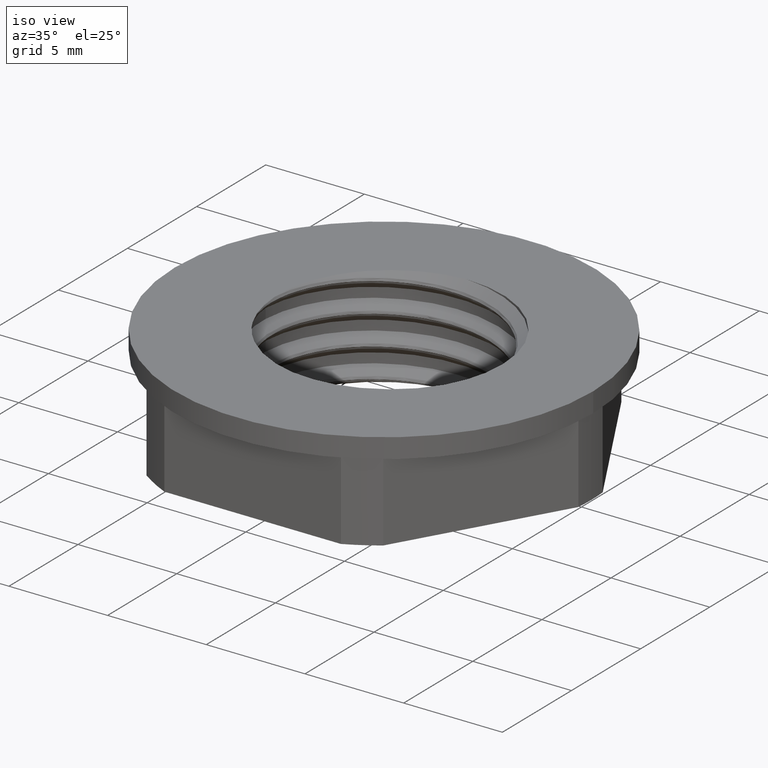
[diagram: clean part render]
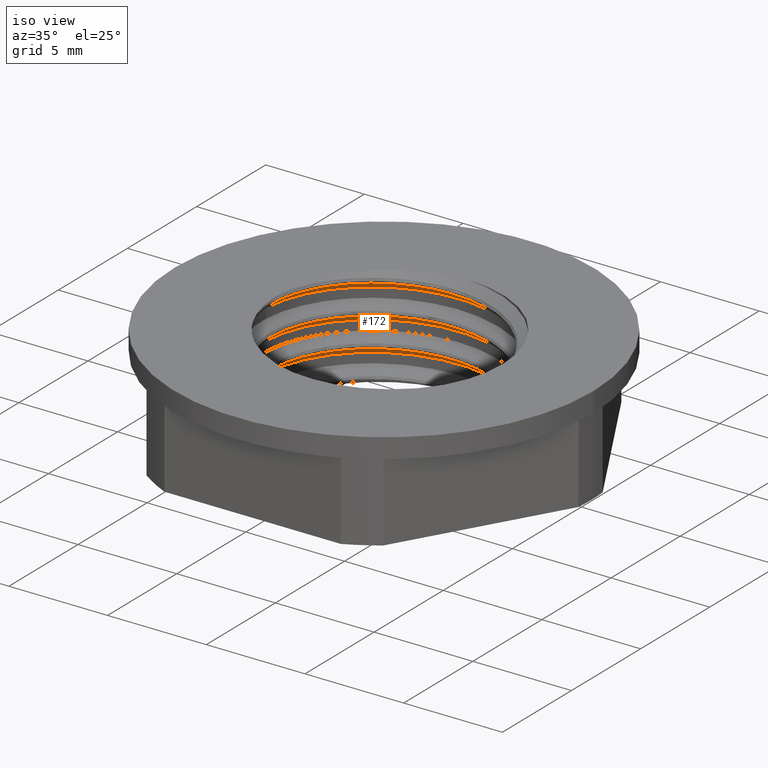
[diagram: same view with one face highlighted and labeled with its STEP entity id]
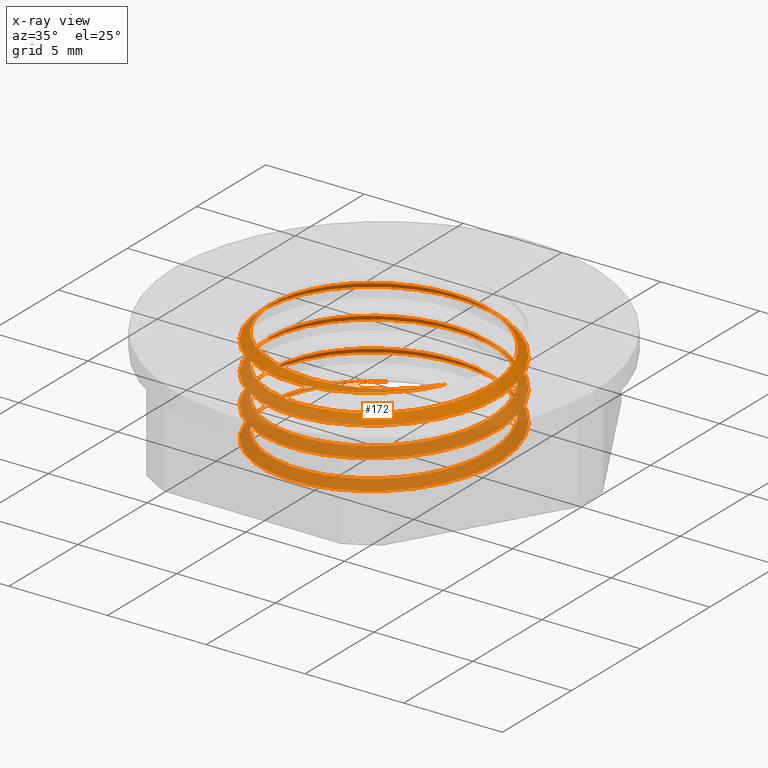
[diagram: x-ray of the same camera — body ghosted, the highlighted face saturated]
A machine part, iso view. The second image highlights one B-rep face of the part: STEP entity #172.
The next image is the same camera in x-ray: the body ghosted, the highlighted face saturated — about 62% of this face is hidden behind the body in this view.
In plain terms, the highlighted face is a freeform B-spline surface patch.
Its self-contained STEP definition (entity closure, byte-faithful):
#162 = EDGE_CURVE ( 'NONE', #832, #842, #2611, .T. ) ;
#163 = EDGE_CURVE ( 'NONE', #836, #845, #2612, .T. ) ;
#165 = EDGE_CURVE ( 'NONE', #846, #841, #2604, .T. ) ;
#172 = ADVANCED_FACE ( 'NONE', ( #1658 ), #2607, .F. ) ;
#176 = EDGE_CURVE ( 'NONE', #820, #835, #2614, .T. ) ;
#177 = EDGE_CURVE ( 'NONE', #819, #820, #1039, .T. ) ;
#197 = EDGE_CURVE ( 'NONE', #819, #899, #2615, .T. ) ;
#199 = EDGE_CURVE ( 'NONE', #835, #846, #2593, .T. ) ;
#218 = EDGE_CURVE ( 'NONE', #841, #836, #2598, .T. ) ;
#222 = EDGE_CURVE ( 'NONE', #845, #832, #2609, .T. ) ;
#234 = EDGE_CURVE ( 'NONE', #842, #899, #1045, .T. ) ;
#266 = ORIENTED_EDGE ( 'NONE', *, *, #218, .F. ) ;
#267 = ORIENTED_EDGE ( 'NONE', *, *, #234, .F. ) ;
#289 = EDGE_LOOP ( 'NONE', ( #267, #1003, #975, #291, #266, #1028, #989, #303, #984, #995 ) ) ;
#291 = ORIENTED_EDGE ( 'NONE', *, *, #163, .F. ) ;
#303 = ORIENTED_EDGE ( 'NONE', *, *, #176, .F. ) ;
#819 = VERTEX_POINT ( 'NONE', #1222 ) ;
#820 = VERTEX_POINT ( 'NONE', #1257 ) ;
#832 = VERTEX_POINT ( 'NONE', #1220 ) ;
#835 = VERTEX_POINT ( 'NONE', #1246 ) ;
#836 = VERTEX_POINT ( 'NONE', #1221 ) ;
#841 = VERTEX_POINT ( 'NONE', #1252 ) ;
#842 = VERTEX_POINT ( 'NONE', #1270 ) ;
#845 = VERTEX_POINT ( 'NONE', #1236 ) ;
#846 = VERTEX_POINT ( 'NONE', #1250 ) ;
#899 = VERTEX_POINT ( 'NONE', #1300 ) ;
#975 = ORIENTED_EDGE ( 'NONE', *, *, #222, .F. ) ;
#984 = ORIENTED_EDGE ( 'NONE', *, *, #177, .F. ) ;
#989 = ORIENTED_EDGE ( 'NONE', *, *, #199, .F. ) ;
#995 = ORIENTED_EDGE ( 'NONE', *, *, #197, .T. ) ;
#1003 = ORIENTED_EDGE ( 'NONE', *, *, #162, .F. ) ;
#1028 = ORIENTED_EDGE ( 'NONE', *, *, #165, .F. ) ;
#1039 = B_SPLINE_CURVE_WITH_KNOTS ( 'NONE', 3,
 ( #2038, #1999, #2043, #2020, #2040, #2044, #2045, #2029, #1994, #2025, #1991, #2031, #2013, #2032, #2010, #2033, #2035, #2039, #1992, #2000, #2001, #2002, #2003, #2005 ),
 .UNSPECIFIED., .F., .F.,
 ( 4, 2, 2, 2, 2, 2, 2, 2, 2, 2, 2, 4 ),
 ( 8.673617379884035500E-018, 0.001129553570658957300, 0.001694330355988432500, 0.002259107141317907200, 0.003388660711976854600, 0.003953437497306327800, 0.004518214282635801500, 0.005647767853294750500, 0.006777321423953698700, 0.007342098209283172400, 0.007906874994612645200, 0.009036428565271592600 ),
 .UNSPECIFIED. ) ;
#1045 = B_SPLINE_CURVE_WITH_KNOTS ( 'NONE', 3,
 ( #1130, #1134, #1165, #1112, #1124, #1147, #1122, #1158, #1149, #1152, #1107, #1118, #1113, #1146, #1125, #1136, #1111, #1142, #1155, #1139 ),
 .UNSPECIFIED., .F., .F.,
 ( 4, 2, 2, 2, 2, 2, 2, 2, 2, 4 ),
 ( 0.005140255465222615500, 0.006270614411305611800, 0.007400973357388608200, 0.008531332303471604600, 0.009661691249554602700, 0.01022687072259610000, 0.01079205019563759900, 0.01192240914172059500, 0.01305276808780359200, 0.01418312703388658600 ),
 .UNSPECIFIED. ) ;
#1107 = CARTESIAN_POINT ( 'NONE',  ( 1.204754885399140100, -5.638966085541290400, 4.999999999999997300 ) ) ;
#1111 = CARTESIAN_POINT ( 'NONE',  ( -1.412804882249637300, -5.462532305369979500, 5.000000000000003600 ) ) ;
#1112 = CARTESIAN_POINT ( 'NONE',  ( 4.227097836677465600, -4.174351955436847600, 4.999999999999998200 ) ) ;
#1113 = CARTESIAN_POINT ( 'NONE',  ( 0.6421405978360399400, -5.702663910916094800, 4.999999999999984900 ) ) ;
#1118 = CARTESIAN_POINT ( 'NONE',  ( 0.8297991214910988000, -5.687767322482637900, 4.999999999999996400 ) ) ;
#1122 = CARTESIAN_POINT ( 'NONE',  ( 2.991736359715123000, -5.045854039460893500, 5.000000000000000900 ) ) ;
#1124 = CARTESIAN_POINT ( 'NONE',  ( 3.942279427979866700, -4.419693311114826000, 5.000000000000000000 ) ) ;
#1125 = CARTESIAN_POINT ( 'NONE',  ( -0.2994377954685464900, -5.693119573924831500, 5.000000000000001800 ) ) ;
#1130 = CARTESIAN_POINT ( 'NONE',  ( 5.190548839197149700, -3.009684825344527400, 4.999999999999997300 ) ) ;
#1134 = CARTESIAN_POINT ( 'NONE',  ( 4.987281056735323400, -3.326515773597758400, 5.000000000000000000 ) ) ;
#1136 = CARTESIAN_POINT ( 'NONE',  ( -1.049877713880709200, -5.563720941580482000, 5.000000000000000000 ) ) ;
#1139 = CARTESIAN_POINT ( 'NONE',  ( -2.777035996044652700, -4.809401473806784300, 5.000000000000000000 ) ) ;
#1142 = CARTESIAN_POINT ( 'NONE',  ( -2.114864666069490100, -5.189524444004612200, 5.000000000000003600 ) ) ;
#1146 = CARTESIAN_POINT ( 'NONE',  ( 0.07863273807698162300, -5.719348577435147800, 4.999999999999985800 ) ) ;
#1147 = CARTESIAN_POINT ( 'NONE',  ( 3.325772853815228000, -4.855333411022990700, 5.000000000000001800 ) ) ;
#1149 = CARTESIAN_POINT ( 'NONE',  ( 1.947562195188667900, -5.475126190460958500, 5.000000000000000000 ) ) ;
#1152 = CARTESIAN_POINT ( 'NONE',  ( 1.393101044464085200, -5.604688963300170600, 5.000000000000000000 ) ) ;
#1155 = CARTESIAN_POINT ( 'NONE',  ( -2.456167257208765600, -5.016057074246332600, 5.000000000000000900 ) ) ;
#1158 = CARTESIAN_POINT ( 'NONE',  ( 2.304141565168539100, -5.354427976357244200, 5.000000000000000000 ) ) ;
#1165 = CARTESIAN_POINT ( 'NONE',  ( 4.749717436548684700, -3.628453458595330500, 4.999999999999998200 ) ) ;
#1220 = CARTESIAN_POINT ( 'NONE',  ( -6.000000000000001800, -6.509205793601941100E-015, 4.376149007339530600 ) ) ;
#1221 = CARTESIAN_POINT ( 'NONE',  ( -6.000000000000001800, -3.254602896800970600E-015, 2.876149007339531000 ) ) ;
#1222 = CARTESIAN_POINT ( 'NONE',  ( -2.790923561363135400, 4.801355760013072100, -7.015588947076672200E-018 ) ) ;
#1236 = CARTESIAN_POINT ( 'NONE',  ( 6.000000000000000900, 1.122276860965852100E-016, 3.626149007339530600 ) ) ;
#1246 = CARTESIAN_POINT ( 'NONE',  ( 6.000000000000000900, 1.122276860965852100E-016, 0.6261490073395348200 ) ) ;
#1250 = CARTESIAN_POINT ( 'NONE',  ( -6.000000000000001800, 4.040196699477066700E-015, 1.376149007339533900 ) ) ;
#1252 = CARTESIAN_POINT ( 'NONE',  ( 6.000000000000001800, -3.479058268994140500E-015, 2.126149007339532800 ) ) ;
#1257 = CARTESIAN_POINT ( 'NONE',  ( -5.192396889363846100, -3.006495392200805700, 1.841391375954116600E-017 ) ) ;
#1270 = CARTESIAN_POINT ( 'NONE',  ( 5.190548839197149700, -3.009684825344527400, 4.999999999999997300 ) ) ;
#1300 = CARTESIAN_POINT ( 'NONE',  ( -2.777035996044652700, -4.809401473806784300, 5.000000000000000000 ) ) ;
#1570 = CARTESIAN_POINT ( 'NONE',  ( -5.795591850283278400, -1.552776579205799300, 4.437916857754695200 ) ) ;
#1572 = CARTESIAN_POINT ( 'NONE',  ( -5.152410731840936000, -3.953389325572113300, 4.531666857754695200 ) ) ;
#1576 = CARTESIAN_POINT ( 'NONE',  ( -0.8478361671605156900, -6.438772968725622500, 4.719166857754696100 ) ) ;
#1577 = CARTESIAN_POINT ( 'NONE',  ( -5.795591850283278400, -1.552776579205799300, 2.937916857754697900 ) ) ;
#1578 = CARTESIAN_POINT ( 'NONE',  ( -5.152410731840936000, -3.953389325572113300, 3.031666857754697900 ) ) ;
#1579 = CARTESIAN_POINT ( 'NONE',  ( 1.552776579205799300, -5.795591850283278400, 4.812916857754696100 ) ) ;
#1583 = CARTESIAN_POINT ( 'NONE',  ( 3.947141235747298400, -5.154084743364759200, 4.906422854042741500 ) ) ;
#1586 = CARTESIAN_POINT ( 'NONE',  ( -6.000000000000001800, -3.254602896800970600E-015, 2.876149007339531000 ) ) ;
#1592 = CARTESIAN_POINT ( 'NONE',  ( -6.000000000000000000, -0.7898424761968236800, 2.908122351220749000 ) ) ;
#1594 = CARTESIAN_POINT ( 'NONE',  ( 5.190548839197149700, -3.009684825344527400, 4.999999999999997300 ) ) ;
#1596 = CARTESIAN_POINT ( 'NONE',  ( -3.000123449500725400, -5.196081147148867700, 3.125416857754697900 ) ) ;
#1612 = CARTESIAN_POINT ( 'NONE',  ( -6.000000000000001800, -6.509205793601941100E-015, 4.376149007339530600 ) ) ;
#1614 = CARTESIAN_POINT ( 'NONE',  ( -6.000000000000000000, -0.7898424761968251300, 4.408122351220746400 ) ) ;
#1618 = CARTESIAN_POINT ( 'NONE',  ( -3.000123449500725400, -5.196081147148867700, 4.625416857754695200 ) ) ;
#1622 = CARTESIAN_POINT ( 'NONE',  ( -0.8478361671605156900, -6.438772968725622500, 3.219166857754697900 ) ) ;
#1624 = CARTESIAN_POINT ( 'NONE',  ( -3.000123449500725400, -5.196081147148867700, 1.625416857754699900 ) ) ;
#1630 = CARTESIAN_POINT ( 'NONE',  ( -0.8478361671605156900, -6.438772968725622500, 1.719166857754700100 ) ) ;
#1631 = CARTESIAN_POINT ( 'NONE',  ( 6.000000000000001800, -3.479058268994140500E-015, 2.126149007339532800 ) ) ;
#1632 = CARTESIAN_POINT ( 'NONE',  ( 6.000000000000000900, 1.122276860965852100E-016, 3.626149007339530600 ) ) ;
#1633 = CARTESIAN_POINT ( 'NONE',  ( 1.552776579205799300, -5.795591850283278400, 3.312916857754697900 ) ) ;
#1634 = CARTESIAN_POINT ( 'NONE',  ( 3.953389325572111500, -5.152410731840936900, 3.406666857754697000 ) ) ;
#1635 = CARTESIAN_POINT ( 'NONE',  ( 5.196081147148865900, -3.000123449500725400, 3.500416857754697500 ) ) ;
#1639 = CARTESIAN_POINT ( 'NONE',  ( 5.999999999999999100, -1.607771546170717400, 2.061065355754119600 ) ) ;
#1643 = CARTESIAN_POINT ( 'NONE',  ( -5.795591850283278400, -1.552776579205799300, 1.437916857754700100 ) ) ;
#1644 = CARTESIAN_POINT ( 'NONE',  ( -5.152410731840936000, -3.953389325572113300, 1.531666857754700100 ) ) ;
#1653 = CARTESIAN_POINT ( 'NONE',  ( 1.552776579205799300, -5.795591850283278400, 1.812916857754699700 ) ) ;
#1654 = CARTESIAN_POINT ( 'NONE',  ( 5.999999999999999100, -1.607771546170716000, 3.561065355754117400 ) ) ;
#1657 = CARTESIAN_POINT ( 'NONE',  ( -6.000000000000001800, 4.040196699477066700E-015, 1.376149007339533900 ) ) ;
#1658 = FACE_OUTER_BOUND ( 'NONE', #289, .T. ) ;
#1661 = CARTESIAN_POINT ( 'NONE',  ( 3.953389325572111500, -5.152410731840936900, 1.906666857754699500 ) ) ;
#1663 = CARTESIAN_POINT ( 'NONE',  ( -6.000000000000001800, -0.7898424761968200200, 1.408122351220751700 ) ) ;
#1664 = CARTESIAN_POINT ( 'NONE',  ( 5.196081147148865900, -3.000123449500725400, 2.000416857754699200 ) ) ;
#1804 = CARTESIAN_POINT ( 'NONE',  ( -3.659245206378454600, 4.769055794689131200, 0.03125615559874158500 ) ) ;
#1805 = CARTESIAN_POINT ( 'NONE',  ( -0.7847545928271130200, -5.959708791736257900, 2.093756155598738700 ) ) ;
#1808 = CARTESIAN_POINT ( 'NONE',  ( 1.437245306775671000, -5.364382293212695000, 2.187506155598738300 ) ) ;
#1810 = CARTESIAN_POINT ( 'NONE',  ( 3.659245206378452000, -4.769055794689133900, 2.281256155598738700 ) ) ;
#1811 = CARTESIAN_POINT ( 'NONE',  ( 4.809476999057355200, -2.776905193758122600, 2.375006155598738300 ) ) ;
#1812 = CARTESIAN_POINT ( 'NONE',  ( 5.959708791736257900, -0.7847545928271100200, 2.468756155598738700 ) ) ;
#1816 = CARTESIAN_POINT ( 'NONE',  ( -5.364382293212695000, -1.437245306775671000, 0.3125061555987411800 ) ) ;
#1817 = CARTESIAN_POINT ( 'NONE',  ( 1.437245306775671000, -5.364382293212695000, 0.6875061555987406200 ) ) ;
#1823 = CARTESIAN_POINT ( 'NONE',  ( 5.364382293212695000, 1.437245306775670500, 1.062506155598740100 ) ) ;
#1824 = CARTESIAN_POINT ( 'NONE',  ( -3.659245206378454600, 4.769055794689131200, 1.531256155598739400 ) ) ;
#1827 = CARTESIAN_POINT ( 'NONE',  ( 4.809476999057355200, -2.776905193758122600, 0.8750061555987404000 ) ) ;
#1830 = CARTESIAN_POINT ( 'NONE',  ( -0.7847545928271130200, -5.959708791736257900, 0.5937561555987407300 ) ) ;
#1838 = CARTESIAN_POINT ( 'NONE',  ( 2.776905193758121700, 4.809476999057356000, -0.2499938444012580200 ) ) ;
#1839 = CARTESIAN_POINT ( 'NONE',  ( 3.659245206378452000, -4.769055794689133900, 0.7812561555987405100 ) ) ;
#1840 = CARTESIAN_POINT ( 'NONE',  ( 5.959708791736257900, -0.7847545928271100200, 0.9687561555987404000 ) ) ;
#1841 = CARTESIAN_POINT ( 'NONE',  ( 4.769055794689135700, 3.659245206378452000, 1.156256155598740100 ) ) ;
#1842 = CARTESIAN_POINT ( 'NONE',  ( 2.776905193758121700, 4.809476999057356000, 1.250006155598739800 ) ) ;
#1843 = CARTESIAN_POINT ( 'NONE',  ( 0.7847545928271111300, 5.959708791736257900, 1.343756155598739800 ) ) ;
#1844 = CARTESIAN_POINT ( 'NONE',  ( -4.809476999057356000, 2.776905193758122200, 1.625006155598739200 ) ) ;
#1845 = CARTESIAN_POINT ( 'NONE',  ( -1.437245306775671000, 5.364382293212695000, -0.06249384440125827600 ) ) ;
#1846 = CARTESIAN_POINT ( 'NONE',  ( -5.959708791736257900, 0.7847545928271115700, 1.718756155598739600 ) ) ;
#1848 = CARTESIAN_POINT ( 'NONE',  ( -5.364382293212695000, -1.437245306775671000, 1.812506155598739000 ) ) ;
#1849 = CARTESIAN_POINT ( 'NONE',  ( -4.769055794689132100, -3.659245206378454600, 1.906256155598738700 ) ) ;
#1850 = CARTESIAN_POINT ( 'NONE',  ( -4.809476999057356000, 2.776905193758122200, 0.1250061555987414500 ) ) ;
#1851 = CARTESIAN_POINT ( 'NONE',  ( -1.437245306775671000, 5.364382293212695000, 1.437506155598739400 ) ) ;
#1852 = CARTESIAN_POINT ( 'NONE',  ( -2.776905193758122200, -4.809476999057356000, 2.000006155598738700 ) ) ;
#1857 = CARTESIAN_POINT ( 'NONE',  ( -5.959708791736257900, 0.7847545928271115700, 0.2187561555987413100 ) ) ;
#1858 = CARTESIAN_POINT ( 'NONE',  ( -4.769055794689132100, -3.659245206378454600, 0.4062561555987410100 ) ) ;
#1859 = CARTESIAN_POINT ( 'NONE',  ( -2.776905193758122200, -4.809476999057356000, 0.5000061555987409500 ) ) ;
#1862 = CARTESIAN_POINT ( 'NONE',  ( 0.7847545928271111300, 5.959708791736257900, -0.1562438444012581300 ) ) ;
#1863 = CARTESIAN_POINT ( 'NONE',  ( 3.119555498731400300, 5.402932175054450800, -0.8250056718119722600 ) ) ;
#1864 = CARTESIAN_POINT ( 'NONE',  ( -5.364382293212695000, -1.437245306775671000, 6.312506155598733000 ) ) ;
#1865 = CARTESIAN_POINT ( 'NONE',  ( 3.659245206378452000, -4.769055794689133900, 5.281256155598733800 ) ) ;
#1866 = CARTESIAN_POINT ( 'NONE',  ( -4.809476999057356000, 2.776905193758122200, 4.625006155598735600 ) ) ;
#1867 = CARTESIAN_POINT ( 'NONE',  ( -4.809476999057356000, 2.776905193758122200, 3.125006155598737000 ) ) ;
#1868 = CARTESIAN_POINT ( 'NONE',  ( -5.959708791736257900, 0.7847545928271115700, 3.218756155598737400 ) ) ;
#1869 = CARTESIAN_POINT ( 'NONE',  ( -4.769055794689132100, -3.659245206378454600, 6.406256155598732100 ) ) ;
#1870 = CARTESIAN_POINT ( 'NONE',  ( 2.776905193758121700, 4.809476999057356000, 7.250006155598731200 ) ) ;
#1871 = CARTESIAN_POINT ( 'NONE',  ( -5.364382293212695000, -1.437245306775671000, 4.812506155598734700 ) ) ;
#1872 = CARTESIAN_POINT ( 'NONE',  ( 0.8815877152418809500, 6.695094371204562300, -0.7312556718119722600 ) ) ;
#1873 = CARTESIAN_POINT ( 'NONE',  ( -3.659245206378454600, 4.769055794689131200, 3.031256155598737000 ) ) ;
#1874 = CARTESIAN_POINT ( 'NONE',  ( 4.769055794689135700, 3.659245206378452000, 2.656256155598737400 ) ) ;
#1875 = CARTESIAN_POINT ( 'NONE',  ( 2.776905193758121700, 4.809476999057356000, 2.750006155598737400 ) ) ;
#1876 = CARTESIAN_POINT ( 'NONE',  ( 0.7847545928271111300, 5.959708791736257900, 2.843756155598737800 ) ) ;
#1877 = CARTESIAN_POINT ( 'NONE',  ( -5.959708791736257900, 0.7847545928271115700, 6.218756155598733000 ) ) ;
#1878 = CARTESIAN_POINT ( 'NONE',  ( 4.769055794689135700, 3.659245206378452000, 7.156256155598732100 ) ) ;
#1879 = CARTESIAN_POINT ( 'NONE',  ( 1.437245306775671000, -5.364382293212695000, 6.687506155598733000 ) ) ;
#1880 = CARTESIAN_POINT ( 'NONE',  ( -1.614591131831228900, 6.026308826712741200, -0.6375056718119724900 ) ) ;
#1881 = CARTESIAN_POINT ( 'NONE',  ( 1.437245306775671000, -5.364382293212695000, 3.687506155598736500 ) ) ;
#1882 = CARTESIAN_POINT ( 'NONE',  ( 2.776905193758121700, 4.809476999057356000, 4.250006155598735600 ) ) ;
#1883 = CARTESIAN_POINT ( 'NONE',  ( -2.776905193758122200, -4.809476999057356000, 5.000006155598734700 ) ) ;
#1884 = CARTESIAN_POINT ( 'NONE',  ( -4.809476999057356000, 2.776905193758122200, 6.125006155598733000 ) ) ;
#1885 = CARTESIAN_POINT ( 'NONE',  ( -2.776905193758122200, -4.809476999057356000, 6.500006155598733000 ) ) ;
#1886 = CARTESIAN_POINT ( 'NONE',  ( -5.959708791736257900, 0.7847545928271115700, 4.718756155598734700 ) ) ;
#1887 = CARTESIAN_POINT ( 'NONE',  ( 1.437245306775671000, -5.364382293212695000, 5.187506155598734700 ) ) ;
#1888 = CARTESIAN_POINT ( 'NONE',  ( 5.959708791736257900, -0.7847545928271100200, 5.468756155598734700 ) ) ;
#1889 = CARTESIAN_POINT ( 'NONE',  ( 4.769055794689135700, 3.659245206378452000, 5.656256155598733800 ) ) ;
#1890 = CARTESIAN_POINT ( 'NONE',  ( 2.776905193758121700, 4.809476999057356000, 5.750006155598733800 ) ) ;
#1891 = CARTESIAN_POINT ( 'NONE',  ( -1.437245306775671000, 5.364382293212695000, 5.937506155598733800 ) ) ;
#1892 = CARTESIAN_POINT ( 'NONE',  ( -4.110769978904339300, 5.357523282220919100, -0.5437556718119727100 ) ) ;
#1893 = CARTESIAN_POINT ( 'NONE',  ( -5.402932175054450800, 3.119555498731400700, -0.4500056718119727600 ) ) ;
#1894 = CARTESIAN_POINT ( 'NONE',  ( 4.809476999057355200, -2.776905193758122600, 5.375006155598734700 ) ) ;
#1895 = CARTESIAN_POINT ( 'NONE',  ( -4.769055794689132100, -3.659245206378454600, 4.906256155598734700 ) ) ;
#1896 = CARTESIAN_POINT ( 'NONE',  ( 5.364382293212695000, 1.437245306775670500, 5.562506155598733800 ) ) ;
#1897 = CARTESIAN_POINT ( 'NONE',  ( -1.437245306775671000, 5.364382293212695000, 2.937506155598737400 ) ) ;
#1898 = CARTESIAN_POINT ( 'NONE',  ( -2.776905193758122200, -4.809476999057356000, 3.500006155598736500 ) ) ;
#1899 = CARTESIAN_POINT ( 'NONE',  ( -6.695094371204562300, 0.8815877152418814000, -0.3562556718119728700 ) ) ;
#1900 = CARTESIAN_POINT ( 'NONE',  ( -6.026308826712741200, -1.614591131831228900, -0.2625056718119730400 ) ) ;
#1901 = CARTESIAN_POINT ( 'NONE',  ( -5.357523282220919100, -4.110769978904339300, -0.1687556718119731800 ) ) ;
#1902 = CARTESIAN_POINT ( 'NONE',  ( -3.119555498731401100, -5.402932175054450800, -0.07500567181197330400 ) ) ;
#1903 = CARTESIAN_POINT ( 'NONE',  ( 4.809476999057355200, -2.776905193758122600, 3.875006155598736100 ) ) ;
#1904 = CARTESIAN_POINT ( 'NONE',  ( -0.8815877152418832900, -6.695094371204563200, 0.01874432818802656400 ) ) ;
#1905 = CARTESIAN_POINT ( 'NONE',  ( 1.614591131831228900, -6.026308826712741200, 0.1124943281880264300 ) ) ;
#1906 = CARTESIAN_POINT ( 'NONE',  ( 5.364382293212695000, 1.437245306775670500, 4.062506155598735600 ) ) ;
#1907 = CARTESIAN_POINT ( 'NONE',  ( -1.437245306775671000, 5.364382293212695000, 4.437506155598736500 ) ) ;
#1908 = CARTESIAN_POINT ( 'NONE',  ( -0.7847545928271130200, -5.959708791736257900, 6.593756155598733000 ) ) ;
#1909 = CARTESIAN_POINT ( 'NONE',  ( 4.809476999057355200, -2.776905193758122600, 6.875006155598732100 ) ) ;
#1910 = CARTESIAN_POINT ( 'NONE',  ( 4.110769978904338400, -5.357523282220920900, 0.2062443281880262900 ) ) ;
#1911 = CARTESIAN_POINT ( 'NONE',  ( 5.402932175054449900, -3.119555498731401100, 0.2999943281880261800 ) ) ;
#1912 = CARTESIAN_POINT ( 'NONE',  ( -5.364382293212695000, -1.437245306775671000, 3.312506155598737000 ) ) ;
#1913 = CARTESIAN_POINT ( 'NONE',  ( 4.769055794689135700, 3.659245206378452000, 4.156256155598735600 ) ) ;
#1914 = CARTESIAN_POINT ( 'NONE',  ( 3.659245206378452000, -4.769055794689133900, 3.781256155598735600 ) ) ;
#1915 = CARTESIAN_POINT ( 'NONE',  ( 5.959708791736257900, -0.7847545928271100200, 3.968756155598736100 ) ) ;
#1916 = CARTESIAN_POINT ( 'NONE',  ( 0.7847545928271111300, 5.959708791736257900, 5.843756155598733000 ) ) ;
#1917 = CARTESIAN_POINT ( 'NONE',  ( 5.959708791736257900, -0.7847545928271100200, 6.968756155598731200 ) ) ;
#1918 = CARTESIAN_POINT ( 'NONE',  ( -3.659245206378454600, 4.769055794689131200, 4.531256155598735600 ) ) ;
#1919 = CARTESIAN_POINT ( 'NONE',  ( 3.659245206378452000, -4.769055794689133900, 6.781256155598731200 ) ) ;
#1920 = CARTESIAN_POINT ( 'NONE',  ( -0.7847545928271130200, -5.959708791736257900, 5.093756155598734700 ) ) ;
#1921 = CARTESIAN_POINT ( 'NONE',  ( -4.769055794689132100, -3.659245206378454600, 3.406256155598736500 ) ) ;
#1922 = CARTESIAN_POINT ( 'NONE',  ( -3.659245206378454600, 4.769055794689131200, 6.031256155598733000 ) ) ;
#1923 = CARTESIAN_POINT ( 'NONE',  ( -0.7847545928271130200, -5.959708791736257900, 3.593756155598736500 ) ) ;
#1924 = CARTESIAN_POINT ( 'NONE',  ( 5.364382293212695000, 1.437245306775670500, 2.562506155598737800 ) ) ;
#1925 = CARTESIAN_POINT ( 'NONE',  ( 0.7847545928271111300, 5.959708791736257900, 4.343756155598736500 ) ) ;
#1926 = CARTESIAN_POINT ( 'NONE',  ( 5.364382293212695000, 1.437245306775670500, 7.062506155598731200 ) ) ;
#1927 = CARTESIAN_POINT ( 'NONE',  ( 4.110769978904338400, -5.357523282220920900, 6.206244328188017100 ) ) ;
#1928 = CARTESIAN_POINT ( 'NONE',  ( -4.110769978904339300, 5.357523282220919100, 5.456244328188018900 ) ) ;
#1929 = CARTESIAN_POINT ( 'NONE',  ( -0.8815877152418832900, -6.695094371204563200, 1.518744328188025100 ) ) ;
#1930 = CARTESIAN_POINT ( 'NONE',  ( 0.8815877152418809500, 6.695094371204562300, 3.768744328188021500 ) ) ;
#1931 = CARTESIAN_POINT ( 'NONE',  ( 0.8815877152418809500, 6.695094371204562300, 2.268744328188023700 ) ) ;
#1932 = CARTESIAN_POINT ( 'NONE',  ( -3.119555498731401100, -5.402932175054450800, 1.424994328188024600 ) ) ;
#1933 = CARTESIAN_POINT ( 'NONE',  ( -1.614591131831228900, 6.026308826712741200, 2.362494328188023300 ) ) ;
#1934 = CARTESIAN_POINT ( 'NONE',  ( -3.119555498731401100, -5.402932175054450800, 4.424994328188019700 ) ) ;
#1935 = CARTESIAN_POINT ( 'NONE',  ( -4.110769978904339300, 5.357523282220919100, 3.956244328188020600 ) ) ;
#1936 = CARTESIAN_POINT ( 'NONE',  ( -5.402932175054450800, 3.119555498731400700, 5.549994328188018000 ) ) ;
#1937 = CARTESIAN_POINT ( 'NONE',  ( 3.119555498731400300, 5.402932175054450800, 2.174994328188023700 ) ) ;
#1938 = CARTESIAN_POINT ( 'NONE',  ( 5.402932175054449900, -3.119555498731401100, 1.799994328188024200 ) ) ;
#1939 = CARTESIAN_POINT ( 'NONE',  ( -5.402932175054450800, 3.119555498731400700, 1.049994328188025300 ) ) ;
#1940 = CARTESIAN_POINT ( 'NONE',  ( -5.357523282220919100, -4.110769978904339300, 1.331244328188025100 ) ) ;
#1941 = CARTESIAN_POINT ( 'NONE',  ( 6.695094371204562300, -0.8815877152418797300, 1.893744328188024200 ) ) ;
#1942 = CARTESIAN_POINT ( 'NONE',  ( 6.026308826712741200, 1.614591131831228000, 1.987494328188024000 ) ) ;
#1943 = CARTESIAN_POINT ( 'NONE',  ( -1.614591131831228900, 6.026308826712741200, 5.362494328188018900 ) ) ;
#1944 = CARTESIAN_POINT ( 'NONE',  ( -5.357523282220919100, -4.110769978904339300, 5.831244328188018000 ) ) ;
#1945 = CARTESIAN_POINT ( 'NONE',  ( -6.026308826712741200, -1.614591131831228900, 1.237494328188024900 ) ) ;
#1946 = CARTESIAN_POINT ( 'NONE',  ( -5.357523282220919100, -4.110769978904339300, 2.831244328188022400 ) ) ;
#1947 = CARTESIAN_POINT ( 'NONE',  ( 6.695094371204562300, -0.8815877152418797300, 3.393744328188022000 ) ) ;
#1948 = CARTESIAN_POINT ( 'NONE',  ( 1.614591131831228900, -6.026308826712741200, 1.612494328188024400 ) ) ;
#1949 = CARTESIAN_POINT ( 'NONE',  ( 3.119555498731400300, 5.402932175054450800, 0.6749943281880256300 ) ) ;
#1950 = CARTESIAN_POINT ( 'NONE',  ( -1.614591131831228900, 6.026308826712741200, 0.8624943281880254100 ) ) ;
#1951 = CARTESIAN_POINT ( 'NONE',  ( -1.614591131831228900, 6.026308826712741200, 3.862494328188021500 ) ) ;
#1952 = CARTESIAN_POINT ( 'NONE',  ( -6.695094371204562300, 0.8815877152418814000, 4.143744328188020600 ) ) ;
#1953 = CARTESIAN_POINT ( 'NONE',  ( -6.695094371204562300, 0.8815877152418814000, 1.143744328188025100 ) ) ;
#1954 = CARTESIAN_POINT ( 'NONE',  ( -4.110769978904339300, 5.357523282220919100, 0.9562443281880252900 ) ) ;
#1955 = CARTESIAN_POINT ( 'NONE',  ( -5.357523282220919100, -4.110769978904339300, 4.331244328188019700 ) ) ;
#1956 = CARTESIAN_POINT ( 'NONE',  ( 0.8815877152418809500, 6.695094371204562300, 0.7687443281880255200 ) ) ;
#1957 = CARTESIAN_POINT ( 'NONE',  ( 1.614591131831228900, -6.026308826712741200, 4.612494328188019700 ) ) ;
#1958 = CARTESIAN_POINT ( 'NONE',  ( -0.8815877152418832900, -6.695094371204563200, 4.518744328188019700 ) ) ;
#1959 = CARTESIAN_POINT ( 'NONE',  ( -5.402932175054450800, 3.119555498731400700, 4.049994328188020600 ) ) ;
#1960 = CARTESIAN_POINT ( 'NONE',  ( 4.110769978904338400, -5.357523282220920900, 4.706244328188019700 ) ) ;
#1961 = CARTESIAN_POINT ( 'NONE',  ( 5.357523282220921800, 4.110769978904337500, 2.081244328188023300 ) ) ;
#1962 = CARTESIAN_POINT ( 'NONE',  ( 6.695094371204562300, -0.8815877152418797300, 0.3937443281880260700 ) ) ;
#1963 = CARTESIAN_POINT ( 'NONE',  ( 6.026308826712741200, 1.614591131831228000, 0.4874943281880259000 ) ) ;
#1964 = CARTESIAN_POINT ( 'NONE',  ( -6.695094371204562300, 0.8815877152418814000, 2.643744328188023300 ) ) ;
#1965 = CARTESIAN_POINT ( 'NONE',  ( 5.402932175054449900, -3.119555498731401100, 4.799994328188019700 ) ) ;
#1966 = CARTESIAN_POINT ( 'NONE',  ( 6.695094371204562300, -0.8815877152418797300, 4.893744328188019700 ) ) ;
#1967 = CARTESIAN_POINT ( 'NONE',  ( -0.8815877152418832900, -6.695094371204563200, 3.018744328188022400 ) ) ;
#1968 = CARTESIAN_POINT ( 'NONE',  ( 5.357523282220921800, 4.110769978904337500, 5.081244328188019700 ) ) ;
#1969 = CARTESIAN_POINT ( 'NONE',  ( 0.8815877152418809500, 6.695094371204562300, 5.268744328188020600 ) ) ;
#1970 = CARTESIAN_POINT ( 'NONE',  ( 4.110769978904338400, -5.357523282220920900, 3.206244328188022000 ) ) ;
#1971 = CARTESIAN_POINT ( 'NONE',  ( 5.357523282220921800, 4.110769978904337500, 3.581244328188021100 ) ) ;
#1972 = CARTESIAN_POINT ( 'NONE',  ( -6.695094371204562300, 0.8815877152418814000, 5.643744328188018000 ) ) ;
#1973 = CARTESIAN_POINT ( 'NONE',  ( -6.026308826712741200, -1.614591131831228900, 5.737494328188018000 ) ) ;
#1974 = CARTESIAN_POINT ( 'NONE',  ( -0.8815877152418832900, -6.695094371204563200, 6.018744328188018000 ) ) ;
#1975 = CARTESIAN_POINT ( 'NONE',  ( 5.402932175054449900, -3.119555498731401100, 6.299994328188017100 ) ) ;
#1976 = CARTESIAN_POINT ( 'NONE',  ( -4.110769978904339300, 5.357523282220919100, 2.456244328188022900 ) ) ;
#1977 = CARTESIAN_POINT ( 'NONE',  ( 5.357523282220921800, 4.110769978904337500, 0.5812443281880257400 ) ) ;
#1978 = CARTESIAN_POINT ( 'NONE',  ( -3.119555498731401100, -5.402932175054450800, 2.924994328188022400 ) ) ;
#1979 = CARTESIAN_POINT ( 'NONE',  ( 1.614591131831228900, -6.026308826712741200, 3.112494328188022900 ) ) ;
#1980 = CARTESIAN_POINT ( 'NONE',  ( 5.402932175054449900, -3.119555498731401100, 3.299994328188022000 ) ) ;
#1981 = CARTESIAN_POINT ( 'NONE',  ( 6.026308826712741200, 1.614591131831228000, 4.987494328188018900 ) ) ;
#1982 = CARTESIAN_POINT ( 'NONE',  ( 3.119555498731400300, 5.402932175054450800, 3.674994328188021500 ) ) ;
#1983 = CARTESIAN_POINT ( 'NONE',  ( -3.119555498731401100, -5.402932175054450800, 5.924994328188018000 ) ) ;
#1984 = CARTESIAN_POINT ( 'NONE',  ( -6.026308826712741200, -1.614591131831228900, 4.237494328188019700 ) ) ;
#1985 = CARTESIAN_POINT ( 'NONE',  ( -5.402932175054450800, 3.119555498731400700, 2.549994328188022900 ) ) ;
#1986 = CARTESIAN_POINT ( 'NONE',  ( 3.119555498731400300, 5.402932175054450800, 5.174994328188018900 ) ) ;
#1987 = CARTESIAN_POINT ( 'NONE',  ( -6.026308826712741200, -1.614591131831228900, 2.737494328188022900 ) ) ;
#1988 = CARTESIAN_POINT ( 'NONE',  ( 4.110769978904338400, -5.357523282220920900, 1.706244328188024000 ) ) ;
#1989 = CARTESIAN_POINT ( 'NONE',  ( 6.026308826712741200, 1.614591131831228000, 3.487494328188021500 ) ) ;
#1990 = CARTESIAN_POINT ( 'NONE',  ( 1.614591131831228900, -6.026308826712741200, 6.112494328188018000 ) ) ;
#1991 = CARTESIAN_POINT ( 'NONE',  ( -5.346560508895793300, 2.106934398339967500, 4.205673986346184200E-016 ) ) ;
#1992 = CARTESIAN_POINT ( 'NONE',  ( -5.787443255777130700, -1.218428900221620400, -4.936924327626287300E-015 ) ) ;
#1994 = CARTESIAN_POINT ( 'NONE',  ( -4.997470900340506000, 2.781046763360620400, 7.712602263017893000E-016 ) ) ;
#1997 = CARTESIAN_POINT ( 'NONE',  ( 6.695094371204562300, -0.8815877152418797300, 6.393744328188018000 ) ) ;
#1998 = CARTESIAN_POINT ( 'NONE',  ( -3.000123449500725400, -5.196081147148867700, 0.1254168577547021000 ) ) ;
#1999 = CARTESIAN_POINT ( 'NONE',  ( -3.130675620479919100, 4.626868812192235200, -7.015588947076669100E-018 ) ) ;
#2000 = CARTESIAN_POINT ( 'NONE',  ( -5.714496513216407600, -1.590524508746934000, -4.936924327626295200E-015 ) ) ;
#2001 = CARTESIAN_POINT ( 'NONE',  ( -5.668534566831625400, -1.776519184835600100, 1.957679437465843100E-015 ) ) ;
#2002 = CARTESIAN_POINT ( 'NONE',  ( -5.506511854050235600, -2.321480793248990700, 1.957679437465833200E-015 ) ) ;
#2003 = CARTESIAN_POINT ( 'NONE',  ( -5.365691801654824300, -2.670874910836556800, 5.787230038713156300E-017 ) ) ;
#2005 = CARTESIAN_POINT ( 'NONE',  ( -5.192396889363846100, -3.006495392200805700, 1.841391375954116600E-017 ) ) ;
#2008 = CARTESIAN_POINT ( 'NONE',  ( 5.357523282220921800, 4.110769978904337500, 6.581244328188016200 ) ) ;
#2010 = CARTESIAN_POINT ( 'NONE',  ( -5.793262567223310500, 0.6673225896231561600, -1.582343838375836800E-017 ) ) ;
#2013 = CARTESIAN_POINT ( 'NONE',  ( -5.555097320785402600, 1.578115002931770800, 2.211866207387837500E-015 ) ) ;
#2015 = CARTESIAN_POINT ( 'NONE',  ( 6.000000000000000900, 1.122276860965852100E-016, 0.6261490073395348200 ) ) ;
#2017 = CARTESIAN_POINT ( 'NONE',  ( 3.119555498731400300, 5.402932175054450800, 6.674994328188017100 ) ) ;
#2019 = CARTESIAN_POINT ( 'NONE',  ( -0.8478361671605156900, -6.438772968725622500, 0.2191668577547019900 ) ) ;
#2020 = CARTESIAN_POINT ( 'NONE',  ( -3.887117368485665500, 4.066636840943964200, -7.386220878238264900E-016 ) ) ;
#2025 = CARTESIAN_POINT ( 'NONE',  ( -5.264792864713923500, 2.280072387332351600, 7.712602263017892000E-016 ) ) ;
#2026 = CARTESIAN_POINT ( 'NONE',  ( 1.552776579205799300, -5.795591850283278400, 0.3129168577547018500 ) ) ;
#2028 = CARTESIAN_POINT ( 'NONE',  ( 6.026308826712741200, 1.614591131831228000, 6.487494328188016200 ) ) ;
#2029 = CARTESIAN_POINT ( 'NONE',  ( -4.788861562478578200, 3.094602958289661000, -2.176902321906988300E-016 ) ) ;
#2030 = CARTESIAN_POINT ( 'NONE',  ( 3.953389325572111500, -5.152410731840936900, 0.4066668577547016800 ) ) ;
#2031 = CARTESIAN_POINT ( 'NONE',  ( -5.491614511269730800, 1.756010015769154700, 4.205673986346180200E-016 ) ) ;
#2032 = CARTESIAN_POINT ( 'NONE',  ( -5.719044031589880300, 1.037301195765569600, 2.211866207387835100E-015 ) ) ;
#2033 = CARTESIAN_POINT ( 'NONE',  ( -5.868762758819164200, -0.09225411097480232200, -1.582343838375952700E-017 ) ) ;
#2034 = CARTESIAN_POINT ( 'NONE',  ( -4.388861565581882100, -4.394248829815512500, 0.06492577022616068100 ) ) ;
#2035 = CARTESIAN_POINT ( 'NONE',  ( -5.868805452612137200, -0.4696667311686331100, -1.819669500234974000E-015 ) ) ;
#2036 = CARTESIAN_POINT ( 'NONE',  ( 5.196081147148865900, -3.000123449500725400, 0.5004168577547015700 ) ) ;
#2037 = CARTESIAN_POINT ( 'NONE',  ( 5.999999999999999100, -1.607771546170716000, 0.5610653557541218600 ) ) ;
#2038 = CARTESIAN_POINT ( 'NONE',  ( -2.790923561363135400, 4.801355760013072100, -7.015588947076672200E-018 ) ) ;
#2039 = CARTESIAN_POINT ( 'NONE',  ( -5.814613041302980200, -1.031722094022645500, -1.819669500234974800E-015 ) ) ;
#2040 = CARTESIAN_POINT ( 'NONE',  ( -4.028172903690832900, 3.940936043299552200, -1.205816382645453300E-016 ) ) ;
#2041 = CARTESIAN_POINT ( 'NONE',  ( -5.192396889363846100, -3.006495392200805700, 1.841391375954116600E-017 ) ) ;
#2043 = CARTESIAN_POINT ( 'NONE',  ( -3.446836409054984300, 4.420902281911713400, -7.386220878238265900E-016 ) ) ;
#2044 = CARTESIAN_POINT ( 'NONE',  ( -4.298574927547301500, 3.673910198529732000, -1.205816382645451100E-016 ) ) ;
#2045 = CARTESIAN_POINT ( 'NONE',  ( -4.427752164970006500, 3.532547589593946200, -2.176902321906986800E-016 ) ) ;
#2151 = CARTESIAN_POINT ( 'NONE',  ( 1.437245306775671000, -5.364382293212695000, 0.6875061555987402900 ) ) ;
#2152 = CARTESIAN_POINT ( 'NONE',  ( 5.959708791736257900, -0.7847545928271093500, 0.9687561555987399500 ) ) ;
#2154 = CARTESIAN_POINT ( 'NONE',  ( 4.769055794689133900, 3.659245206378452000, 1.156256155598739600 ) ) ;
#2155 = CARTESIAN_POINT ( 'NONE',  ( -5.364382293212695000, -1.437245306775671400, 0.3125061555987407900 ) ) ;
#2156 = CARTESIAN_POINT ( 'NONE',  ( 4.809476999057355200, -2.776905193758122200, 0.8750061555987400700 ) ) ;
#2157 = CARTESIAN_POINT ( 'NONE',  ( 5.364382293212695000, 1.437245306775670500, 1.062506155598739800 ) ) ;
#2158 = CARTESIAN_POINT ( 'NONE',  ( -4.769055794689132100, -3.659245206378454600, 0.4062561555987406800 ) ) ;
#2164 = CARTESIAN_POINT ( 'NONE',  ( -2.776905193758121700, -4.809476999057356000, 0.5000061555987406200 ) ) ;
#2188 = CARTESIAN_POINT ( 'NONE',  ( -2.790923561363135400, 4.801355760013072100, -7.015588947076672200E-018 ) ) ;
#2189 = CARTESIAN_POINT ( 'NONE',  ( -5.959708791736257900, 0.7847545928271111300, 0.2187561555987409500 ) ) ;
#2192 = CARTESIAN_POINT ( 'NONE',  ( -0.7847545928271124600, -5.959708791736257900, 0.5937561555987405100 ) ) ;
#2194 = CARTESIAN_POINT ( 'NONE',  ( 3.659245206378452400, -4.769055794689133000, 0.7812561555987404000 ) ) ;
#2196 = CARTESIAN_POINT ( 'NONE',  ( -4.069817655151813300, 4.057962469191133800, 0.06471999072962034100 ) ) ;
#2197 = CARTESIAN_POINT ( 'NONE',  ( -4.809476999057356000, 2.776905193758121700, 0.1250061555987410600 ) ) ;
#2199 = CARTESIAN_POINT ( 'NONE',  ( -2.776905193758121700, -4.809476999057356000, 3.500006155598736100 ) ) ;
#2200 = CARTESIAN_POINT ( 'NONE',  ( 5.959708791736257900, -0.7847545928271093500, 2.468756155598737800 ) ) ;
#2201 = CARTESIAN_POINT ( 'NONE',  ( -1.552776579205799300, 5.795591850283278400, 1.062916857754700800 ) ) ;
#2202 = CARTESIAN_POINT ( 'NONE',  ( -3.953389325572113300, 5.152410731840936000, 1.156666857754700600 ) ) ;
#2203 = CARTESIAN_POINT ( 'NONE',  ( -5.196081147148867700, 3.000123449500725400, 1.250416857754700400 ) ) ;
#2204 = CARTESIAN_POINT ( 'NONE',  ( -6.000000000000000900, 1.607771546170718900, 1.311065355754121200 ) ) ;
#2205 = CARTESIAN_POINT ( 'NONE',  ( -6.000000000000001800, 4.040196699477066700E-015, 1.376149007339533900 ) ) ;
#2207 = CARTESIAN_POINT ( 'NONE',  ( 5.364382293212695000, 1.437245306775670500, 2.562506155598737400 ) ) ;
#2208 = CARTESIAN_POINT ( 'NONE',  ( -3.659245206378454600, 4.769055794689132100, 3.031256155598736500 ) ) ;
#2209 = CARTESIAN_POINT ( 'NONE',  ( 2.776905193758121300, 4.809476999057356000, 4.250006155598734700 ) ) ;
#2210 = CARTESIAN_POINT ( 'NONE',  ( -5.959708791736257900, 0.7847545928271111300, 3.218756155598736500 ) ) ;
#2211 = CARTESIAN_POINT ( 'NONE',  ( -4.769055794689132100, -3.659245206378454600, 1.906256155598738300 ) ) ;
#2212 = CARTESIAN_POINT ( 'NONE',  ( 3.659245206378452400, -4.769055794689133000, 3.781256155598735200 ) ) ;
#2213 = CARTESIAN_POINT ( 'NONE',  ( 0.7847545928271106900, 5.959708791736257900, 4.343756155598734700 ) ) ;
#2214 = CARTESIAN_POINT ( 'NONE',  ( 4.769055794689133900, 3.659245206378452000, 4.156256155598734700 ) ) ;
#2215 = CARTESIAN_POINT ( 'NONE',  ( -1.437245306775671400, 5.364382293212695000, 2.937506155598737000 ) ) ;
#2216 = CARTESIAN_POINT ( 'NONE',  ( -1.437245306775671400, 5.364382293212695000, 4.437506155598735600 ) ) ;
#2217 = CARTESIAN_POINT ( 'NONE',  ( 3.659245206378452400, -4.769055794689133000, 2.281256155598737400 ) ) ;
#2218 = CARTESIAN_POINT ( 'NONE',  ( 4.809476999057355200, -2.776905193758122200, 2.375006155598737800 ) ) ;
#2219 = CARTESIAN_POINT ( 'NONE',  ( -5.364382293212695000, -1.437245306775671400, 3.312506155598736500 ) ) ;
#2220 = CARTESIAN_POINT ( 'NONE',  ( 6.000000000000000900, 1.122276860965852100E-016, 0.6261490073395348200 ) ) ;
#2221 = CARTESIAN_POINT ( 'NONE',  ( 5.795591850283278400, 1.552776579205798600, 0.6879168577547012400 ) ) ;
#2222 = CARTESIAN_POINT ( 'NONE',  ( 1.437245306775671000, -5.364382293212695000, 3.687506155598736100 ) ) ;
#2224 = CARTESIAN_POINT ( 'NONE',  ( 0.8478361671605135800, 6.438772968725619900, 0.9691668577547010200 ) ) ;
#2225 = CARTESIAN_POINT ( 'NONE',  ( -1.437245306775671400, 5.364382293212695000, 1.437506155598739200 ) ) ;
#2227 = CARTESIAN_POINT ( 'NONE',  ( -4.809476999057356000, 2.776905193758121700, 3.125006155598736500 ) ) ;
#2228 = CARTESIAN_POINT ( 'NONE',  ( 4.769055794689133900, 3.659245206378452000, 2.656256155598737000 ) ) ;
#2229 = CARTESIAN_POINT ( 'NONE',  ( -3.659245206378454600, 4.769055794689132100, 4.531256155598734700 ) ) ;
#2230 = CARTESIAN_POINT ( 'NONE',  ( -2.777035996044652700, -4.809401473806784300, 5.000000000000000000 ) ) ;
#2231 = CARTESIAN_POINT ( 'NONE',  ( -2.776905193758121700, -4.809476999057356000, 2.000006155598738300 ) ) ;
#2232 = CARTESIAN_POINT ( 'NONE',  ( 6.000000000000000000, 0.7898424761968216900, 0.6581223512207524700 ) ) ;
#2233 = CARTESIAN_POINT ( 'NONE',  ( 5.364382293212695000, 1.437245306775670500, 4.062506155598734700 ) ) ;
#2234 = CARTESIAN_POINT ( 'NONE',  ( -0.7847545928271124600, -5.959708791736257900, 2.093756155598738300 ) ) ;
#2235 = CARTESIAN_POINT ( 'NONE',  ( 5.152410731840936900, 3.953389325572110600, 0.7816668577547012400 ) ) ;
#2237 = CARTESIAN_POINT ( 'NONE',  ( -4.769078692220316100, -3.659159743507039300, 4.906252549773101100 ) ) ;
#2238 = CARTESIAN_POINT ( 'NONE',  ( -4.809476999057356000, 2.776905193758121700, 1.625006155598739000 ) ) ;
#2239 = CARTESIAN_POINT ( 'NONE',  ( 2.776905193758121300, 4.809476999057356000, 2.750006155598737000 ) ) ;
#2240 = CARTESIAN_POINT ( 'NONE',  ( 5.959708791736257900, -0.7847545928271093500, 3.968756155598735600 ) ) ;
#2241 = CARTESIAN_POINT ( 'NONE',  ( 1.437245306775671000, -5.364382293212695000, 2.187506155598737800 ) ) ;
#2242 = CARTESIAN_POINT ( 'NONE',  ( 0.7847545928271106900, 5.959708791736257900, 1.343756155598739600 ) ) ;
#2243 = CARTESIAN_POINT ( 'NONE',  ( -5.364382293212695000, -1.437245306775671400, 1.812506155598738700 ) ) ;
#2244 = CARTESIAN_POINT ( 'NONE',  ( 0.7847545928271106900, 5.959708791736257900, 2.843756155598737400 ) ) ;
#2245 = CARTESIAN_POINT ( 'NONE',  ( 4.809476999057355200, -2.776905193758122200, 3.875006155598735600 ) ) ;
#2246 = CARTESIAN_POINT ( 'NONE',  ( -4.809476999057356000, 2.776905193758121700, 4.625006155598734700 ) ) ;
#2247 = CARTESIAN_POINT ( 'NONE',  ( -5.959708791736257900, 0.7847545928271111300, 4.718756155598734700 ) ) ;
#2248 = CARTESIAN_POINT ( 'NONE',  ( -5.364382293212695000, -1.437245306775671400, 4.812506155598733800 ) ) ;
#2249 = CARTESIAN_POINT ( 'NONE',  ( -0.7847545928271124600, -5.959708791736257900, 3.593756155598736100 ) ) ;
#2251 = CARTESIAN_POINT ( 'NONE',  ( 3.000123449500724500, 5.196081147148867700, 0.8754168577547010200 ) ) ;
#2253 = CARTESIAN_POINT ( 'NONE',  ( -3.659245206378454600, 4.769055794689132100, 1.531256155598739200 ) ) ;
#2255 = CARTESIAN_POINT ( 'NONE',  ( -5.959708791736257900, 0.7847545928271111300, 1.718756155598739400 ) ) ;
#2256 = CARTESIAN_POINT ( 'NONE',  ( -4.769055794689132100, -3.659245206378454600, 3.406256155598736100 ) ) ;
#2257 = CARTESIAN_POINT ( 'NONE',  ( 2.776905193758121300, 4.809476999057356000, 1.250006155598739600 ) ) ;
#2311 = CARTESIAN_POINT ( 'NONE',  ( -1.552776579205799300, 5.795591850283278400, 2.562916857754698800 ) ) ;
#2314 = CARTESIAN_POINT ( 'NONE',  ( -3.953389325572113300, 5.152410731840936000, 2.656666857754698400 ) ) ;
#2315 = CARTESIAN_POINT ( 'NONE',  ( -5.196081147148867700, 3.000123449500725400, 2.750416857754698400 ) ) ;
#2319 = CARTESIAN_POINT ( 'NONE',  ( -6.000000000000001800, -3.254602896800970600E-015, 2.876149007339531000 ) ) ;
#2321 = CARTESIAN_POINT ( 'NONE',  ( 5.152410731840936900, 3.953389325572110600, 2.281666857754698800 ) ) ;
#2323 = CARTESIAN_POINT ( 'NONE',  ( -6.000000000000002700, 1.607771546170715400, 2.811065355754118800 ) ) ;
#2351 = CARTESIAN_POINT ( 'NONE',  ( 6.000000000000001800, 0.7898424761968201300, 2.158122351220750400 ) ) ;
#2355 = CARTESIAN_POINT ( 'NONE',  ( 3.000123449500724500, 5.196081147148867700, 2.375416857754698800 ) ) ;
#2356 = CARTESIAN_POINT ( 'NONE',  ( 0.8478361671605135800, 6.438772968725619900, 2.469166857754698800 ) ) ;
#2357 = CARTESIAN_POINT ( 'NONE',  ( 6.000000000000001800, -3.479058268994140500E-015, 2.126149007339532800 ) ) ;
#2359 = CARTESIAN_POINT ( 'NONE',  ( 5.795591850283278400, 1.552776579205798600, 2.187916857754699200 ) ) ;
#2372 = CARTESIAN_POINT ( 'NONE',  ( -6.000000000000003600, 1.607771546170713600, 4.311065355754117000 ) ) ;
#2381 = CARTESIAN_POINT ( 'NONE',  ( -5.196081147148867700, 3.000123449500725400, 4.250416857754696100 ) ) ;
#2382 = CARTESIAN_POINT ( 'NONE',  ( 0.8478361671605135800, 6.438772968725619900, 3.969166857754697000 ) ) ;
#2385 = CARTESIAN_POINT ( 'NONE',  ( 6.000000000000000900, 1.122276860965852100E-016, 3.626149007339530600 ) ) ;
#2388 = CARTESIAN_POINT ( 'NONE',  ( -3.953389325572113300, 5.152410731840936000, 4.156666857754696100 ) ) ;
#2390 = CARTESIAN_POINT ( 'NONE',  ( -6.000000000000001800, -6.509205793601941100E-015, 4.376149007339530600 ) ) ;
#2391 = CARTESIAN_POINT ( 'NONE',  ( 6.000000000000000000, 0.7898424761968216900, 3.658122351220747700 ) ) ;
#2392 = CARTESIAN_POINT ( 'NONE',  ( 5.795591850283278400, 1.552776579205798600, 3.687916857754697000 ) ) ;
#2394 = CARTESIAN_POINT ( 'NONE',  ( -1.552776579205799300, 5.795591850283278400, 4.062916857754697000 ) ) ;
#2398 = CARTESIAN_POINT ( 'NONE',  ( 5.152410731840936900, 3.953389325572110600, 3.781666857754697500 ) ) ;
#2399 = CARTESIAN_POINT ( 'NONE',  ( 3.000123449500724500, 5.196081147148867700, 3.875416857754696600 ) ) ;
#2593 =( BOUNDED_CURVE ( )  B_SPLINE_CURVE ( 2, ( #2220, #2232, #2221, #2235, #2251, #2224, #2201, #2202, #2203, #2204, #2205 ),
 .UNSPECIFIED., .F., .T. ) 
 B_SPLINE_CURVE_WITH_KNOTS ( ( 3, 2, 2, 2, 2, 3 ),
 ( 0.1666196151937993400, 0.1749999999999999900, 0.2000000000000000100, 0.2250000000000000100, 0.2500000000000000000, 0.2666196151937993400 ),
 .UNSPECIFIED. ) 
 CURVE ( )  GEOMETRIC_REPRESENTATION_ITEM ( )  RATIONAL_B_SPLINE_CURVE ( ( 0.9660737115727577900, 0.9744832476326679100, 1.000000000000000000, 0.9238795325112867400, 1.000000000000000000, 0.9238795325112867400, 1.000000000000000000, 0.9238795325112867400, 1.000000000000000000, 0.9493962848786189300, 0.9660737115727575700 ) ) 
 REPRESENTATION_ITEM ( '' )  );
#2598 =( BOUNDED_CURVE ( )  B_SPLINE_CURVE ( 2, ( #2357, #2351, #2359, #2321, #2355, #2356, #2311, #2314, #2315, #2323, #2319 ),
 .UNSPECIFIED., .F., .T. ) 
 B_SPLINE_CURVE_WITH_KNOTS ( ( 3, 2, 2, 2, 2, 3 ),
 ( 0.3666196151937993200, 0.3750000000000000000, 0.4000000000000000200, 0.4249999999999999900, 0.4500000000000000100, 0.4666196151937993500 ),
 .UNSPECIFIED. ) 
 CURVE ( )  GEOMETRIC_REPRESENTATION_ITEM ( )  RATIONAL_B_SPLINE_CURVE ( ( 0.9660737115727575700, 0.9744832476326678000, 1.000000000000000000, 0.9238795325112867400, 1.000000000000000000, 0.9238795325112867400, 1.000000000000000000, 0.9238795325112867400, 1.000000000000000000, 0.9493962848786188200, 0.9660737115727577900 ) ) 
 REPRESENTATION_ITEM ( '' )  );
#2604 =( BOUNDED_CURVE ( )  B_SPLINE_CURVE ( 2, ( #1657, #1663, #1643, #1644, #1624, #1630, #1653, #1661, #1664, #1639, #1631 ),
 .UNSPECIFIED., .F., .T. ) 
 B_SPLINE_CURVE_WITH_KNOTS ( ( 3, 2, 2, 2, 2, 3 ),
 ( 0.2666196151937993400, 0.2750000000000000200, 0.2999999999999999900, 0.3250000000000000100, 0.3499999999999999800, 0.3666196151937993200 ),
 .UNSPECIFIED. ) 
 CURVE ( )  GEOMETRIC_REPRESENTATION_ITEM ( )  RATIONAL_B_SPLINE_CURVE ( ( 0.9660737115727575700, 0.9744832476326678000, 1.000000000000000000, 0.9238795325112867400, 1.000000000000000000, 0.9238795325112867400, 1.000000000000000000, 0.9238795325112867400, 1.000000000000000000, 0.9493962848786189300, 0.9660737115727575700 ) ) 
 REPRESENTATION_ITEM ( '' )  );
#2607 =( BOUNDED_SURFACE ( )  B_SPLINE_SURFACE ( 1, 2, ( 
 ( #1838, #1862, #1845, #1804, #1850, #1857, #1816, #1858, #1859, #1830, #1817, #1839, #1827, #1840, #1823, #1841, #1842, #1843, #1851, #1824, #1844, #1846, #1848, #1849, #1852, #1805, #1808, #1810, #1811, #1812, #1924, #1874, #1875, #1876, #1897, #1873, #1867, #1868, #1912, #1921, #1898, #1923, #1881, #1914, #1903, #1915, #1906, #1913, #1882, #1925, #1907, #1918, #1866, #1886, #1871, #1895, #1883, #1920, #1887, #1865, #1894, #1888, #1896, #1889, #1890, #1916, #1891, #1922, #1884, #1877, #1864, #1869, #1885, #1908, #1879, #1919, #1909, #1917, #1926, #1878, #1870 ),
 ( #1863, #1872, #1880, #1892, #1893, #1899, #1900, #1901, #1902, #1904, #1905, #1910, #1911, #1962, #1963, #1977, #1949, #1956, #1950, #1954, #1939, #1953, #1945, #1940, #1932, #1929, #1948, #1988, #1938, #1941, #1942, #1961, #1937, #1931, #1933, #1976, #1985, #1964, #1987, #1946, #1978, #1967, #1979, #1970, #1980, #1947, #1989, #1971, #1982, #1930, #1951, #1935, #1959, #1952, #1984, #1955, #1934, #1958, #1957, #1960, #1965, #1966, #1981, #1968, #1986, #1969, #1943, #1928, #1936, #1972, #1973, #1944, #1983, #1974, #1990, #1927, #1975, #1997, #2028, #2008, #2017 ) ),
 .UNSPECIFIED., .F., .F., .T. ) 
 B_SPLINE_SURFACE_WITH_KNOTS ( ( 2, 2 ),
 ( 3, 2, 2, 2, 2, 2, 2, 2, 2, 2, 2, 2, 2, 2, 2, 2, 2, 2, 2, 2, 2, 2, 2, 2, 2, 2, 2, 2, 2, 2, 2, 2, 2, 2, 2, 2, 2, 2, 2, 2, 3 ),
 ( 0.0000000000000000000, 1.000000000000000000 ),
 ( 0.0000000000000000000, 0.02500000000000000100, 0.05000000000000000300, 0.07499999999999999700, 0.1000000000000000100, 0.1250000000000000000, 0.1499999999999999900, 0.1749999999999999900, 0.2000000000000000100, 0.2250000000000000100, 0.2500000000000000000, 0.2750000000000000200, 0.2999999999999999900, 0.3250000000000000100, 0.3499999999999999800, 0.3750000000000000000, 0.4000000000000000200, 0.4249999999999999900, 0.4500000000000000100, 0.4749999999999999800, 0.5000000000000000000, 0.5250000000000000200, 0.5500000000000000400, 0.5749999999999999600, 0.5999999999999999800, 0.6250000000000000000, 0.6500000000000000200, 0.6750000000000000400, 0.6999999999999999600, 0.7249999999999999800, 0.7500000000000000000, 0.7750000000000000200, 0.8000000000000000400, 0.8249999999999999600, 0.8499999999999999800, 0.8750000000000000000, 0.9000000000000000200, 0.9250000000000000400, 0.9499999999999999600, 0.9749999999999999800, 1.000000000000000000 ),
 .UNSPECIFIED. ) 
 GEOMETRIC_REPRESENTATION_ITEM ( )  RATIONAL_B_SPLINE_SURFACE ( (
 ( 1.000000000000000000, 0.9238795325112867400, 1.000000000000000000, 0.9238795325112867400, 1.000000000000000000, 0.9238795325112867400, 1.000000000000000000, 0.9238795325112867400, 1.000000000000000000, 0.9238795325112867400, 1.000000000000000000, 0.9238795325112867400, 1.000000000000000000, 0.9238795325112867400, 1.000000000000000000, 0.9238795325112867400, 1.000000000000000000, 0.9238795325112867400, 1.000000000000000000, 0.9238795325112867400, 1.000000000000000000, 0.9238795325112867400, 1.000000000000000000, 0.9238795325112867400, 1.000000000000000000, 0.9238795325112867400, 1.000000000000000000, 0.9238795325112867400, 1.000000000000000000, 0.9238795325112867400, 1.000000000000000000, 0.9238795325112867400, 1.000000000000000000, 0.9238795325112867400, 1.000000000000000000, 0.9238795325112867400, 1.000000000000000000, 0.9238795325112867400, 1.000000000000000000, 0.9238795325112867400, 1.000000000000000000, 0.9238795325112867400, 1.000000000000000000, 0.9238795325112867400, 1.000000000000000000, 0.9238795325112867400, 1.000000000000000000, 0.9238795325112867400, 1.000000000000000000, 0.9238795325112867400, 1.000000000000000000, 0.9238795325112867400, 1.000000000000000000, 0.9238795325112867400, 1.000000000000000000, 0.9238795325112867400, 1.000000000000000000, 0.9238795325112867400, 1.000000000000000000, 0.9238795325112867400, 1.000000000000000000, 0.9238795325112867400, 1.000000000000000000, 0.9238795325112867400, 1.000000000000000000, 0.9238795325112867400, 1.000000000000000000, 0.9238795325112867400, 1.000000000000000000, 0.9238795325112867400, 1.000000000000000000, 0.9238795325112867400, 1.000000000000000000, 0.9238795325112867400, 1.000000000000000000, 0.9238795325112867400, 1.000000000000000000, 0.9238795325112867400, 1.000000000000000000, 0.9238795325112867400, 1.000000000000000000),
 ( 1.000000000000000000, 0.9238795325112867400, 1.000000000000000000, 0.9238795325112867400, 1.000000000000000000, 0.9238795325112867400, 1.000000000000000000, 0.9238795325112867400, 1.000000000000000000, 0.9238795325112867400, 1.000000000000000000, 0.9238795325112867400, 1.000000000000000000, 0.9238795325112867400, 1.000000000000000000, 0.9238795325112867400, 1.000000000000000000, 0.9238795325112867400, 1.000000000000000000, 0.9238795325112867400, 1.000000000000000000, 0.9238795325112867400, 1.000000000000000000, 0.9238795325112867400, 1.000000000000000000, 0.9238795325112867400, 1.000000000000000000, 0.9238795325112867400, 1.000000000000000000, 0.9238795325112867400, 1.000000000000000000, 0.9238795325112867400, 1.000000000000000000, 0.9238795325112867400, 1.000000000000000000, 0.9238795325112867400, 1.000000000000000000, 0.9238795325112867400, 1.000000000000000000, 0.9238795325112867400, 1.000000000000000000, 0.9238795325112867400, 1.000000000000000000, 0.9238795325112867400, 1.000000000000000000, 0.9238795325112867400, 1.000000000000000000, 0.9238795325112867400, 1.000000000000000000, 0.9238795325112867400, 1.000000000000000000, 0.9238795325112867400, 1.000000000000000000, 0.9238795325112867400, 1.000000000000000000, 0.9238795325112867400, 1.000000000000000000, 0.9238795325112867400, 1.000000000000000000, 0.9238795325112867400, 1.000000000000000000, 0.9238795325112867400, 1.000000000000000000, 0.9238795325112867400, 1.000000000000000000, 0.9238795325112867400, 1.000000000000000000, 0.9238795325112867400, 1.000000000000000000, 0.9238795325112867400, 1.000000000000000000, 0.9238795325112867400, 1.000000000000000000, 0.9238795325112867400, 1.000000000000000000, 0.9238795325112867400, 1.000000000000000000, 0.9238795325112867400, 1.000000000000000000, 0.9238795325112867400, 1.000000000000000000) ) ) 
 REPRESENTATION_ITEM ( '' )  SURFACE ( )  );
#2609 =( BOUNDED_CURVE ( )  B_SPLINE_CURVE ( 2, ( #2385, #2391, #2392, #2398, #2399, #2382, #2394, #2388, #2381, #2372, #2390 ),
 .UNSPECIFIED., .F., .F. ) 
 B_SPLINE_CURVE_WITH_KNOTS ( ( 3, 2, 2, 2, 2, 3 ),
 ( 0.5666196151937993300, 0.5749999999999999600, 0.5999999999999999800, 0.6250000000000000000, 0.6500000000000000200, 0.6666196151937994200 ),
 .UNSPECIFIED. ) 
 CURVE ( )  GEOMETRIC_REPRESENTATION_ITEM ( )  RATIONAL_B_SPLINE_CURVE ( ( 0.9660737115727577900, 0.9744832476326679100, 1.000000000000000000, 0.9238795325112867400, 1.000000000000000000, 0.9238795325112867400, 1.000000000000000000, 0.9238795325112867400, 1.000000000000000000, 0.9493962848786187100, 0.9660737115727577900 ) ) 
 REPRESENTATION_ITEM ( '' )  );
#2611 =( BOUNDED_CURVE ( )  B_SPLINE_CURVE ( 2, ( #1612, #1614, #1570, #1572, #1618, #1576, #1579, #1583, #1594 ),
 .UNSPECIFIED., .F., .F. ) 
 B_SPLINE_CURVE_WITH_KNOTS ( ( 3, 2, 2, 2, 3 ),
 ( 0.6666196151937994200, 0.6750000000000000400, 0.6999999999999999600, 0.7249999999999999800, 0.7499398734116792300 ),
 .UNSPECIFIED. ) 
 CURVE ( )  GEOMETRIC_REPRESENTATION_ITEM ( )  RATIONAL_B_SPLINE_CURVE ( ( 0.9660737115727577900, 0.9744832476326679100, 1.000000000000000000, 0.9238795325112867400, 1.000000000000000000, 0.9238795325112867400, 1.000000000000000000, 0.9240626070717459200, 0.9996347314909799200 ) ) 
 REPRESENTATION_ITEM ( '' )  );
#2612 =( BOUNDED_CURVE ( )  B_SPLINE_CURVE ( 2, ( #1586, #1592, #1577, #1578, #1596, #1622, #1633, #1634, #1635, #1654, #1632 ),
 .UNSPECIFIED., .F., .T. ) 
 B_SPLINE_CURVE_WITH_KNOTS ( ( 3, 2, 2, 2, 2, 3 ),
 ( 0.4666196151937993500, 0.4749999999999999800, 0.5000000000000000000, 0.5250000000000000200, 0.5500000000000000400, 0.5666196151937993300 ),
 .UNSPECIFIED. ) 
 CURVE ( )  GEOMETRIC_REPRESENTATION_ITEM ( )  RATIONAL_B_SPLINE_CURVE ( ( 0.9660737115727577900, 0.9744832476326679100, 1.000000000000000000, 0.9238795325112867400, 1.000000000000000000, 0.9238795325112867400, 1.000000000000000000, 0.9238795325112867400, 1.000000000000000000, 0.9493962848786189300, 0.9660737115727577900 ) ) 
 REPRESENTATION_ITEM ( '' )  );
#2614 =( BOUNDED_CURVE ( )  B_SPLINE_CURVE ( 2, ( #2041, #2034, #1998, #2019, #2026, #2030, #2036, #2037, #2015 ),
 .UNSPECIFIED., .F., .T. ) 
 B_SPLINE_CURVE_WITH_KNOTS ( ( 3, 2, 2, 2, 3 ),
 ( 0.08342134284038450800, 0.1000000000000000100, 0.1250000000000000000, 0.1499999999999999900, 0.1666196151937993400 ),
 .UNSPECIFIED. ) 
 CURVE ( )  GEOMETRIC_REPRESENTATION_ITEM ( )  RATIONAL_B_SPLINE_CURVE ( ( 0.9659919191879358100, 0.9495209946669985700, 1.000000000000000000, 0.9238795325112867400, 1.000000000000000000, 0.9238795325112867400, 1.000000000000000000, 0.9493962848786189300, 0.9660737115727577900 ) ) 
 REPRESENTATION_ITEM ( '' )  );
#2615 =( BOUNDED_CURVE ( )  B_SPLINE_CURVE ( 2, ( #2188, #2196, #2197, #2189, #2155, #2158, #2164, #2192, #2151, #2194, #2156, #2152, #2157, #2154, #2257, #2242, #2225, #2253, #2238, #2255, #2243, #2211, #2231, #2234, #2241, #2217, #2218, #2200, #2207, #2228, #2239, #2244, #2215, #2208, #2227, #2210, #2219, #2256, #2199, #2249, #2222, #2212, #2245, #2240, #2233, #2214, #2209, #2213, #2216, #2229, #2246, #2247, #2248, #2237, #2230 ),
 .UNSPECIFIED., .F., .T. ) 
 B_SPLINE_CURVE_WITH_KNOTS ( ( 3, 2, 2, 2, 2, 2, 2, 2, 2, 2, 2, 2, 2, 2, 2, 2, 2, 2, 2, 2, 2, 2, 2, 2, 2, 2, 2, 3 ),
 ( 0.03347467961951825600, 0.05000000000000000300, 0.07499999999999999700, 0.1000000000000000100, 0.1250000000000000000, 0.1499999999999999900, 0.1749999999999999900, 0.2000000000000000100, 0.2250000000000000300, 0.2499999999999999700, 0.2750000000000000200, 0.2999999999999999900, 0.3250000000000000100, 0.3499999999999999800, 0.3750000000000000000, 0.4000000000000000200, 0.4250000000000000400, 0.4500000000000000100, 0.4750000000000000300, 0.5000000000000000000, 0.5250000000000000200, 0.5500000000000000400, 0.5749999999999999600, 0.5999999999999999800, 0.6250000000000000000, 0.6500000000000000200, 0.6750000000000000400, 0.6999991116377989300 ),
 .UNSPECIFIED. ) 
 CURVE ( )  GEOMETRIC_REPRESENTATION_ITEM ( )  RATIONAL_B_SPLINE_CURVE ( ( 0.9658866317785059800, 0.9496833954894787800, 1.000000000000000000, 0.9238795325112867400, 1.000000000000000000, 0.9238795325112867400, 1.000000000000000000, 0.9238795325112867400, 1.000000000000000000, 0.9238795325112867400, 1.000000000000000000, 0.9238795325112867400, 1.000000000000000000, 0.9238795325112867400, 1.000000000000000000, 0.9238795325112867400, 1.000000000000000000, 0.9238795325112867400, 1.000000000000000000, 0.9238795325112867400, 1.000000000000000000, 0.9238795325112867400, 1.000000000000000000, 0.9238795325112867400, 1.000000000000000000, 0.9238795325112867400, 1.000000000000000000, 0.9238795325112867400, 1.000000000000000000, 0.9238795325112867400, 1.000000000000000000, 0.9238795325112867400, 1.000000000000000000, 0.9238795325112867400, 1.000000000000000000, 0.9238795325112867400, 1.000000000000000000, 0.9238795325112867400, 1.000000000000000000, 0.9238795325112867400, 1.000000000000000000, 0.9238795325112867400, 1.000000000000000000, 0.9238795325112867400, 1.000000000000000000, 0.9238795325112867400, 1.000000000000000000, 0.9238795325112867400, 1.000000000000000000, 0.9238795325112867400, 1.000000000000000000, 0.9238795325112867400, 1.000000000000000000, 0.9238822374131283600, 0.9999945903885513200 ) ) 
 REPRESENTATION_ITEM ( '' )  );